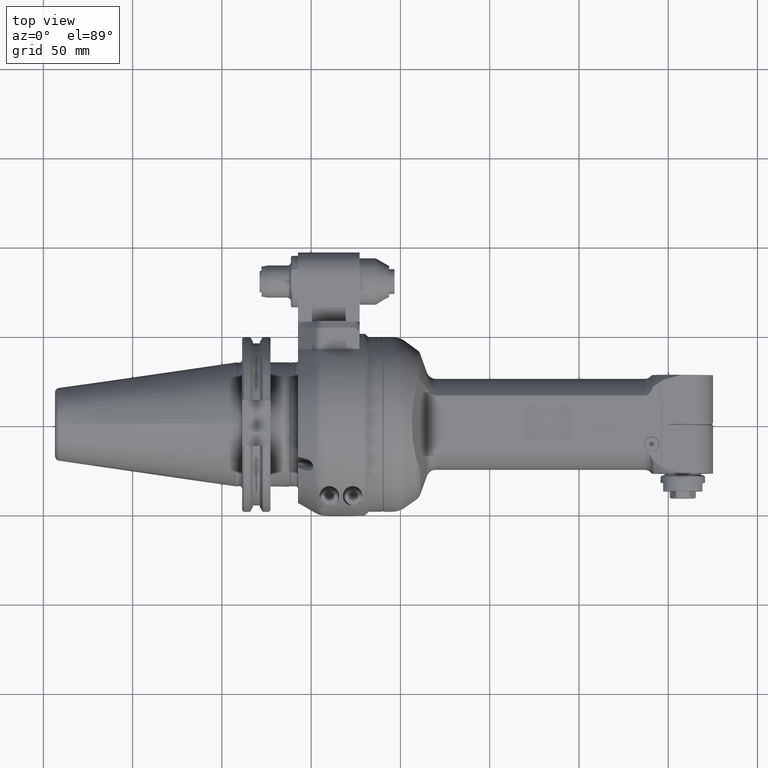
[diagram: clean part render]
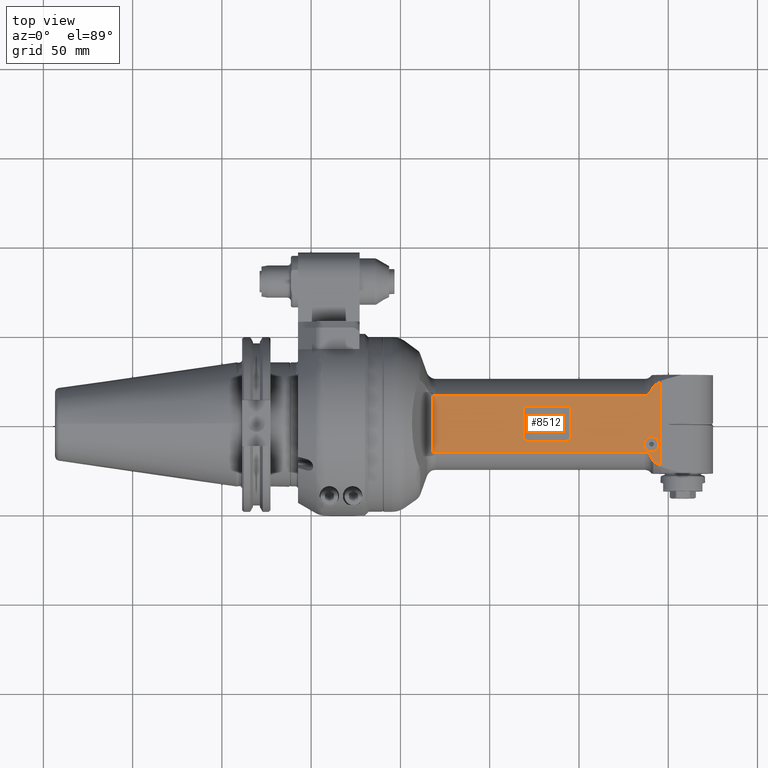
[diagram: same view with one face highlighted and labeled with its STEP entity id]
A machine part, top view. The second image highlights one B-rep face of the part: STEP entity #8512.
In plain terms, the highlighted planar face has unit normal (0, 0.0017, 1).
Its self-contained STEP definition (entity closure, byte-faithful):
#553=FACE_BOUND('',#1981,.T.);
#554=FACE_BOUND('',#1982,.T.);
#666=(
BOUNDED_CURVE()
B_SPLINE_CURVE(2,(#55384,#55385,#55386),.UNSPECIFIED.,.F.,.F.)
B_SPLINE_CURVE_WITH_KNOTS((3,3),(-5.79878388655346,-5.57133687516896),
 .UNSPECIFIED.)
CURVE()
GEOMETRIC_REPRESENTATION_ITEM()
RATIONAL_B_SPLINE_CURVE((1.14716559525133,1.16997557221421,1.19076977881323))
REPRESENTATION_ITEM('')
);
#667=(
BOUNDED_CURVE()
B_SPLINE_CURVE(2,(#55388,#55389,#55390),.UNSPECIFIED.,.F.,.F.)
B_SPLINE_CURVE_WITH_KNOTS((3,3),(-6.84335176949651,-6.5950094872917),
 .UNSPECIFIED.)
CURVE()
GEOMETRIC_REPRESENTATION_ITEM()
RATIONAL_B_SPLINE_CURVE((1.01145288612368,1.03163270529249,1.05033280792366))
REPRESENTATION_ITEM('')
);
#668=(
BOUNDED_CURVE()
B_SPLINE_CURVE(2,(#55394,#55395,#55396),.UNSPECIFIED.,.F.,.F.)
B_SPLINE_CURVE_WITH_KNOTS((3,3),(0.0697539628981458,0.318096250802924),
 .UNSPECIFIED.)
CURVE()
GEOMETRIC_REPRESENTATION_ITEM()
RATIONAL_B_SPLINE_CURVE((1.01145288612368,1.03163270575566,1.05033280878207))
REPRESENTATION_ITEM('')
);
#669=(
BOUNDED_CURVE()
B_SPLINE_CURVE(2,(#55398,#55399,#55400),.UNSPECIFIED.,.F.,.F.)
B_SPLINE_CURVE_WITH_KNOTS((3,3),(-0.878055606093221,-0.650645525628498),
 .UNSPECIFIED.)
CURVE()
GEOMETRIC_REPRESENTATION_ITEM()
RATIONAL_B_SPLINE_CURVE((1.19060210293855,1.16981082520519,1.14700406110412))
REPRESENTATION_ITEM('')
);
#783=B_SPLINE_CURVE_WITH_KNOTS('',3,(#55369,#55370,#55371,#55372,#55373,
#55374,#55375,#55376,#55377,#55378,#55379,#55380,#55381,#55382),
 .UNSPECIFIED.,.F.,.F.,(4,2,2,2,2,2,4),(-1.41793325150411,-1.35347462430256,
-1.28901599710101,-1.2055482640413,-1.12208053098159,-1.01760224326087,
-1.00088049002965),.UNSPECIFIED.);
#784=B_SPLINE_CURVE_WITH_KNOTS('',3,(#55402,#55403,#55404,#55405,#55406,
#55407,#55408,#55409,#55410,#55411,#55412,#55413,#55414,#55415),
 .UNSPECIFIED.,.F.,.F.,(4,2,2,2,2,2,4),(-1.83498601297862,-1.81826425974736,
-1.71378597202664,-1.63031823896693,-1.54685050590722,-1.48239187870567,
-1.41793325150412),.UNSPECIFIED.);
#785=B_SPLINE_CURVE_WITH_KNOTS('',3,(#55419,#55420,#55421,#55422,#55423,
#55424,#55425,#55426),.UNSPECIFIED.,.F.,.F.,(4,2,2,4),(-1.7472273042355,
-1.66636383206749,-1.58550035989947,-1.57788618581346),.UNSPECIFIED.);
#786=B_SPLINE_CURVE_WITH_KNOTS('',3,(#55429,#55430,#55431,#55432,#55433,
#55434,#55435,#55436),.UNSPECIFIED.,.F.,.F.,(4,2,2,4),(-1.91656842272067,
-1.90895424857153,-1.82809077640352,-1.7472273042355),.UNSPECIFIED.);
#971=PLANE('',#9360);
#1449=FACE_OUTER_BOUND('',#1980,.T.);
#1980=EDGE_LOOP('',(#7246,#7247,#7248,#7249,#7250,#7251,#7252,#7253,#7254,
#7255,#7256,#7257));
#1981=EDGE_LOOP('',(#7258));
#1982=EDGE_LOOP('',(#7259,#7260,#7261,#7262,#7263,#7264,#7265,#7266));
#2571=LINE('',#55363,#3120);
#2572=LINE('',#55367,#3121);
#2573=LINE('',#55392,#3122);
#2574=LINE('',#55417,#3123);
#2575=LINE('',#55428,#3124);
#2576=LINE('',#55441,#3125);
#2577=LINE('',#55445,#3126);
#2578=LINE('',#55448,#3127);
#3120=VECTOR('',#11231,22.5);
#3121=VECTOR('',#11234,117.4166943204);
#3122=VECTOR('',#11235,10.);
#3123=VECTOR('',#11236,117.4166943204);
#3124=VECTOR('',#11237,32.59043472566);
#3125=VECTOR('',#11240,15.5);
#3126=VECTOR('',#11243,22.5);
#3127=VECTOR('',#11246,15.5);
#3523=CIRCLE('',#9354,2.);
#3527=CIRCLE('',#9361,4.25);
#3528=CIRCLE('',#9362,2.);
#3529=CIRCLE('',#9363,2.);
#3530=CIRCLE('',#9364,2.);
#4201=VERTEX_POINT('',#55341);
#4202=VERTEX_POINT('',#55343);
#4209=VERTEX_POINT('',#55361);
#4210=VERTEX_POINT('',#55365);
#4211=VERTEX_POINT('',#55366);
#4212=VERTEX_POINT('',#55368);
#4213=VERTEX_POINT('',#55383);
#4214=VERTEX_POINT('',#55387);
#4215=VERTEX_POINT('',#55391);
#4216=VERTEX_POINT('',#55393);
#4217=VERTEX_POINT('',#55397);
#4218=VERTEX_POINT('',#55401);
#4219=VERTEX_POINT('',#55416);
#4220=VERTEX_POINT('',#55418);
#4221=VERTEX_POINT('',#55427);
#4222=VERTEX_POINT('',#55437);
#4223=VERTEX_POINT('',#55439);
#4224=VERTEX_POINT('',#55440);
#4225=VERTEX_POINT('',#55442);
#4226=VERTEX_POINT('',#55444);
#4227=VERTEX_POINT('',#55446);
#5255=EDGE_CURVE('',#4202,#4201,#3523,.T.);
#5265=EDGE_CURVE('',#4201,#4209,#2571,.T.);
#5266=EDGE_CURVE('',#4210,#4211,#2572,.T.);
#5267=EDGE_CURVE('',#4210,#4212,#783,.T.);
#5268=EDGE_CURVE('',#4213,#4212,#666,.T.);
#5269=EDGE_CURVE('',#4214,#4213,#667,.T.);
#5270=EDGE_CURVE('',#4215,#4214,#2573,.T.);
#5271=EDGE_CURVE('',#4215,#4216,#668,.T.);
#5272=EDGE_CURVE('',#4217,#4216,#669,.T.);
#5273=EDGE_CURVE('',#4217,#4218,#784,.T.);
#5274=EDGE_CURVE('',#4219,#4218,#2574,.T.);
#5275=EDGE_CURVE('',#4219,#4220,#785,.T.);
#5276=EDGE_CURVE('',#4221,#4220,#2575,.T.);
#5277=EDGE_CURVE('',#4221,#4211,#786,.T.);
#5278=EDGE_CURVE('',#4222,#4222,#3527,.T.);
#5279=EDGE_CURVE('',#4223,#4224,#2576,.T.);
#5280=EDGE_CURVE('',#4223,#4225,#3528,.T.);
#5281=EDGE_CURVE('',#4225,#4226,#2577,.T.);
#5282=EDGE_CURVE('',#4226,#4227,#3529,.T.);
#5283=EDGE_CURVE('',#4227,#4202,#2578,.T.);
#5284=EDGE_CURVE('',#4209,#4224,#3530,.T.);
#7246=ORIENTED_EDGE('',*,*,#5266,.F.);
#7247=ORIENTED_EDGE('',*,*,#5267,.T.);
#7248=ORIENTED_EDGE('',*,*,#5268,.F.);
#7249=ORIENTED_EDGE('',*,*,#5269,.F.);
#7250=ORIENTED_EDGE('',*,*,#5270,.F.);
#7251=ORIENTED_EDGE('',*,*,#5271,.T.);
#7252=ORIENTED_EDGE('',*,*,#5272,.F.);
#7253=ORIENTED_EDGE('',*,*,#5273,.T.);
#7254=ORIENTED_EDGE('',*,*,#5274,.F.);
#7255=ORIENTED_EDGE('',*,*,#5275,.T.);
#7256=ORIENTED_EDGE('',*,*,#5276,.F.);
#7257=ORIENTED_EDGE('',*,*,#5277,.T.);
#7258=ORIENTED_EDGE('',*,*,#5278,.T.);
#7259=ORIENTED_EDGE('',*,*,#5279,.F.);
#7260=ORIENTED_EDGE('',*,*,#5280,.T.);
#7261=ORIENTED_EDGE('',*,*,#5281,.T.);
#7262=ORIENTED_EDGE('',*,*,#5282,.T.);
#7263=ORIENTED_EDGE('',*,*,#5283,.T.);
#7264=ORIENTED_EDGE('',*,*,#5255,.T.);
#7265=ORIENTED_EDGE('',*,*,#5265,.T.);
#7266=ORIENTED_EDGE('',*,*,#5284,.T.);
#8512=ADVANCED_FACE('',(#1449,#553,#554),#971,.T.);
#9354=AXIS2_PLACEMENT_3D('',#55344,#11213,#11214);
#9360=AXIS2_PLACEMENT_3D('',#55364,#11232,#11233);
#9361=AXIS2_PLACEMENT_3D('',#55438,#11238,#11239);
#9362=AXIS2_PLACEMENT_3D('',#55443,#11241,#11242);
#9363=AXIS2_PLACEMENT_3D('',#55447,#11244,#11245);
#9364=AXIS2_PLACEMENT_3D('',#55449,#11247,#11248);
#11213=DIRECTION('center_axis',(0.,0.,-1.));
#11214=DIRECTION('ref_axis',(1.,0.,0.));
#11231=DIRECTION('',(-1.,0.,0.));
#11232=DIRECTION('center_axis',(0.,0.,1.));
#11233=DIRECTION('ref_axis',(1.,0.,0.));
#11234=DIRECTION('',(-1.,0.,0.));
#11235=DIRECTION('',(0.,-1.,0.));
#11236=DIRECTION('',(1.,0.,0.));
#11237=DIRECTION('',(1.740991800171E-11,1.,-7.636215818995E-13));
#11238=DIRECTION('center_axis',(0.,0.,-1.));
#11239=DIRECTION('ref_axis',(0.,1.,0.));
#11240=DIRECTION('',(0.,-1.,0.));
#11241=DIRECTION('center_axis',(0.,0.,-1.));
#11242=DIRECTION('ref_axis',(-1.,0.,0.));
#11243=DIRECTION('',(1.,0.,0.));
#11244=DIRECTION('center_axis',(0.,0.,-1.));
#11245=DIRECTION('ref_axis',(0.,1.,0.));
#11246=DIRECTION('',(0.,-1.,0.));
#11247=DIRECTION('center_axis',(0.,0.,-1.));
#11248=DIRECTION('ref_axis',(0.,-1.,0.));
#55341=CARTESIAN_POINT('',(142.25,-9.75,20.));
#55343=CARTESIAN_POINT('',(144.25,-7.75,20.));
#55344=CARTESIAN_POINT('Origin',(142.25,-7.75,20.));
#55361=CARTESIAN_POINT('',(119.75,-9.75,20.));
#55363=CARTESIAN_POINT('',(142.25,-9.75,20.));
#55364=CARTESIAN_POINT('Origin',(175.036305,-5.883888,20.));
#55365=CARTESIAN_POINT('',(185.9177317978,-15.81929201956,20.));
#55366=CARTESIAN_POINT('',(68.50103747742,-15.81929201956,20.));
#55367=CARTESIAN_POINT('',(185.9177317978,-15.81929201956,20.));
#55368=CARTESIAN_POINT('',(189.194340066126,-18.4431507452201,19.9999999387759));
#55369=CARTESIAN_POINT('Ctrl Pts',(185.9177317978,-15.8192920195564,20.));
#55370=CARTESIAN_POINT('Ctrl Pts',(186.132593888472,-15.8192920195564,20.));
#55371=CARTESIAN_POINT('Ctrl Pts',(186.365447868562,-15.8493383555497,20.));
#55372=CARTESIAN_POINT('Ctrl Pts',(186.814833472066,-15.9724307903183,20.));
#55373=CARTESIAN_POINT('Ctrl Pts',(187.031498144669,-16.0649906372325,20.));
#55374=CARTESIAN_POINT('Ctrl Pts',(187.463973040054,-16.3018473660257,20.));
#55375=CARTESIAN_POINT('Ctrl Pts',(187.710168959505,-16.4801758064256,20.));
#55376=CARTESIAN_POINT('Ctrl Pts',(188.157972195965,-16.8881912998672,20.));
#55377=CARTESIAN_POINT('Ctrl Pts',(188.360081587315,-17.1173269779209,20.));
#55378=CARTESIAN_POINT('Ctrl Pts',(188.739274313323,-17.6160237864576,20.));
#55379=CARTESIAN_POINT('Ctrl Pts',(188.941524617473,-17.9397924573066,20.));
#55380=CARTESIAN_POINT('Ctrl Pts',(189.141412830521,-18.3335130779353,20.));
#55381=CARTESIAN_POINT('Ctrl Pts',(189.16826338729,-18.3882155377727,20.));
#55382=CARTESIAN_POINT('Ctrl Pts',(189.194340091875,-18.4431507329973,20.));
#55383=CARTESIAN_POINT('',(190.450726484234,-21.0000001574844,19.9999999545987));
#55384=CARTESIAN_POINT('Ctrl Pts',(190.450726467804,-21.0000001658873,20.));
#55385=CARTESIAN_POINT('Ctrl Pts',(189.781811497715,-19.6807631301215,20.));
#55386=CARTESIAN_POINT('Ctrl Pts',(189.194340091835,-18.4431507330173,20.));
#55387=CARTESIAN_POINT('',(194.490018575637,-23.5328455320279,20.));
#55388=CARTESIAN_POINT('Ctrl Pts',(194.49,-23.5328133386128,20.));
#55389=CARTESIAN_POINT('Ctrl Pts',(192.355495993779,-22.2265738560147,20.));
#55390=CARTESIAN_POINT('Ctrl Pts',(190.450726526485,-21.0000000919526,20.));
#55391=CARTESIAN_POINT('',(194.490018575673,23.5328455320907,20.));
#55392=CARTESIAN_POINT('',(194.49,-2.94194399999991,20.));
#55393=CARTESIAN_POINT('',(190.450726423772,21.0000000627793,19.9999999818992));
#55394=CARTESIAN_POINT('Ctrl Pts',(194.49,23.5328133386128,20.));
#55395=CARTESIAN_POINT('Ctrl Pts',(192.355495945746,22.2265738266203,20.));
#55396=CARTESIAN_POINT('Ctrl Pts',(190.450726440605,21.0000000366503,20.));
#55397=CARTESIAN_POINT('',(189.194340066126,18.4431507452205,19.9999999387758));
#55398=CARTESIAN_POINT('Ctrl Pts',(189.194340091835,18.4431507330178,20.));
#55399=CARTESIAN_POINT('Ctrl Pts',(189.781811475546,19.6807630834191,20.));
#55400=CARTESIAN_POINT('Ctrl Pts',(190.450726417215,21.0000000661154,20.));
#55401=CARTESIAN_POINT('',(185.9177317978,15.81929201956,20.));
#55402=CARTESIAN_POINT('Ctrl Pts',(189.194340091875,18.4431507329977,20.));
#55403=CARTESIAN_POINT('Ctrl Pts',(189.16826338729,18.388215537773,20.));
#55404=CARTESIAN_POINT('Ctrl Pts',(189.141412830521,18.3335130779354,20.));
#55405=CARTESIAN_POINT('Ctrl Pts',(188.941524617473,17.9397924573066,20.));
#55406=CARTESIAN_POINT('Ctrl Pts',(188.739274313323,17.6160237864576,20.));
#55407=CARTESIAN_POINT('Ctrl Pts',(188.360081587315,17.1173269779209,20.));
#55408=CARTESIAN_POINT('Ctrl Pts',(188.157972195965,16.8881912998672,20.));
#55409=CARTESIAN_POINT('Ctrl Pts',(187.710168959505,16.4801758064256,20.));
#55410=CARTESIAN_POINT('Ctrl Pts',(187.463973040054,16.3018473660257,20.));
#55411=CARTESIAN_POINT('Ctrl Pts',(187.031498144669,16.0649906372325,20.));
#55412=CARTESIAN_POINT('Ctrl Pts',(186.814833472066,15.9724307903183,20.));
#55413=CARTESIAN_POINT('Ctrl Pts',(186.365447868562,15.8493383555497,20.));
#55414=CARTESIAN_POINT('Ctrl Pts',(186.132593888472,15.8192920195564,20.));
#55415=CARTESIAN_POINT('Ctrl Pts',(185.9177317978,15.8192920195564,20.));
#55416=CARTESIAN_POINT('',(68.50103747742,15.81929201956,20.));
#55417=CARTESIAN_POINT('',(68.50103747742,15.81929201956,20.));
#55418=CARTESIAN_POINT('',(66.80083020146,16.29521736268,19.99999999998));
#55419=CARTESIAN_POINT('Ctrl Pts',(68.50103747742,15.8192920195564,20.));
#55420=CARTESIAN_POINT('Ctrl Pts',(68.2314925701933,15.8192920195564,20.));
#55421=CARTESIAN_POINT('Ctrl Pts',(67.9394152683992,15.8571351272388,20.));
#55422=CARTESIAN_POINT('Ctrl Pts',(67.3757766929904,16.0119361033134,20.));
#55423=CARTESIAN_POINT('Ctrl Pts',(67.1040398042386,16.1282538360826,20.));
#55424=CARTESIAN_POINT('Ctrl Pts',(66.8453989107661,16.2699786800895,20.));
#55425=CARTESIAN_POINT('Ctrl Pts',(66.8231184108346,16.2824584224785,20.));
#55426=CARTESIAN_POINT('Ctrl Pts',(66.8008302014479,16.2952173626588,20.));
#55427=CARTESIAN_POINT('',(66.80083020089,-16.29521736297,20.));
#55428=CARTESIAN_POINT('',(66.80083020089,-16.29521736297,20.));
#55429=CARTESIAN_POINT('Ctrl Pts',(66.8008302008935,-16.2952173629761,20.));
#55430=CARTESIAN_POINT('Ctrl Pts',(66.8231184104651,-16.2824584226854,20.));
#55431=CARTESIAN_POINT('Ctrl Pts',(66.8453989105815,-16.2699786801906,20.));
#55432=CARTESIAN_POINT('Ctrl Pts',(67.1040398042386,-16.1282538360826,20.));
#55433=CARTESIAN_POINT('Ctrl Pts',(67.3757766929904,-16.0119361033134,20.));
#55434=CARTESIAN_POINT('Ctrl Pts',(67.9394152683992,-15.8571351272388,20.));
#55435=CARTESIAN_POINT('Ctrl Pts',(68.2314925701933,-15.8192920195564,20.));
#55436=CARTESIAN_POINT('Ctrl Pts',(68.50103747742,-15.8192920195564,20.));
#55437=CARTESIAN_POINT('',(189.5,-15.75,20.));
#55438=CARTESIAN_POINT('Origin',(189.5,-11.5,20.));
#55439=CARTESIAN_POINT('',(117.75,7.75,20.));
#55440=CARTESIAN_POINT('',(117.75,-7.75,20.));
#55441=CARTESIAN_POINT('',(117.75,7.75,20.));
#55442=CARTESIAN_POINT('',(119.75,9.75,20.));
#55443=CARTESIAN_POINT('Origin',(119.75,7.75,20.));
#55444=CARTESIAN_POINT('',(142.25,9.75,20.));
#55445=CARTESIAN_POINT('',(119.75,9.75,20.));
#55446=CARTESIAN_POINT('',(144.25,7.75,20.));
#55447=CARTESIAN_POINT('Origin',(142.25,7.75,20.));
#55448=CARTESIAN_POINT('',(144.25,7.75,20.));
#55449=CARTESIAN_POINT('Origin',(119.75,-7.75,20.));